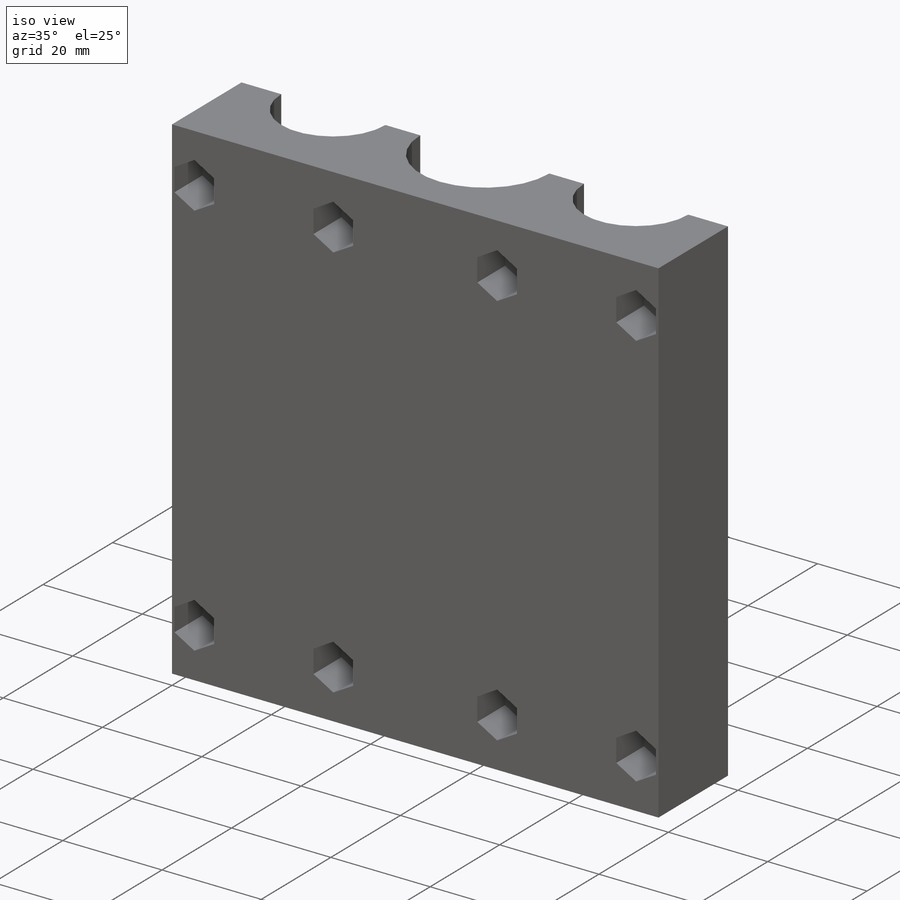
[diagram: iso view]
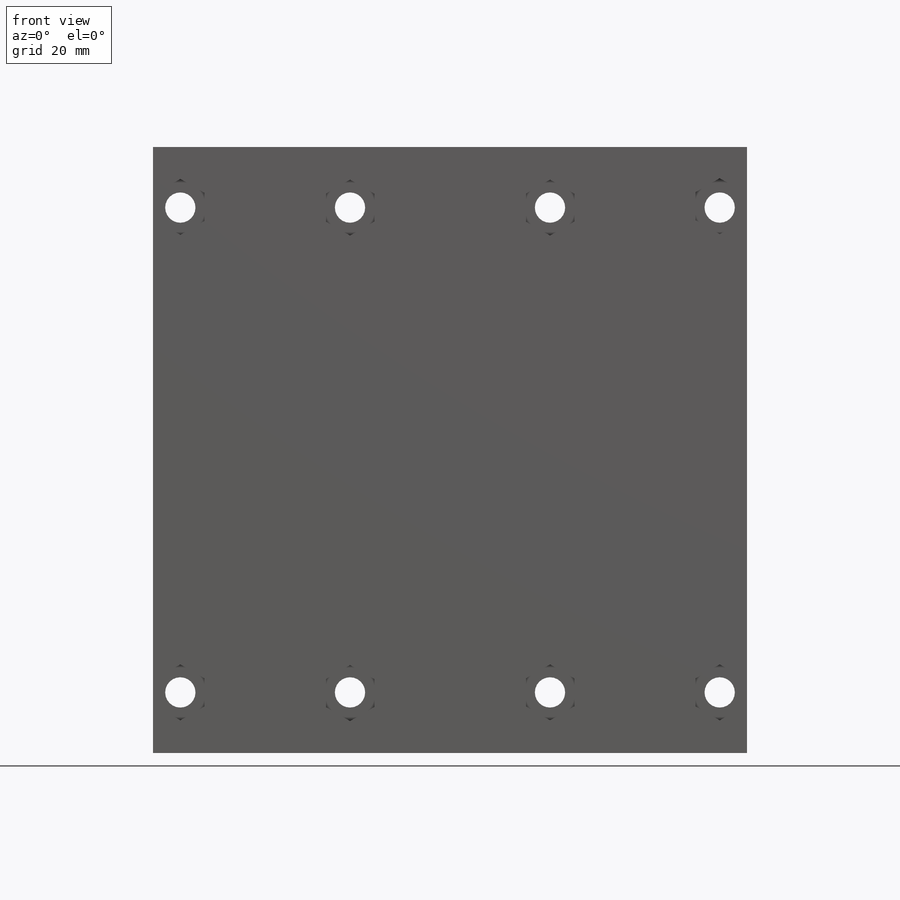
[diagram: front view]
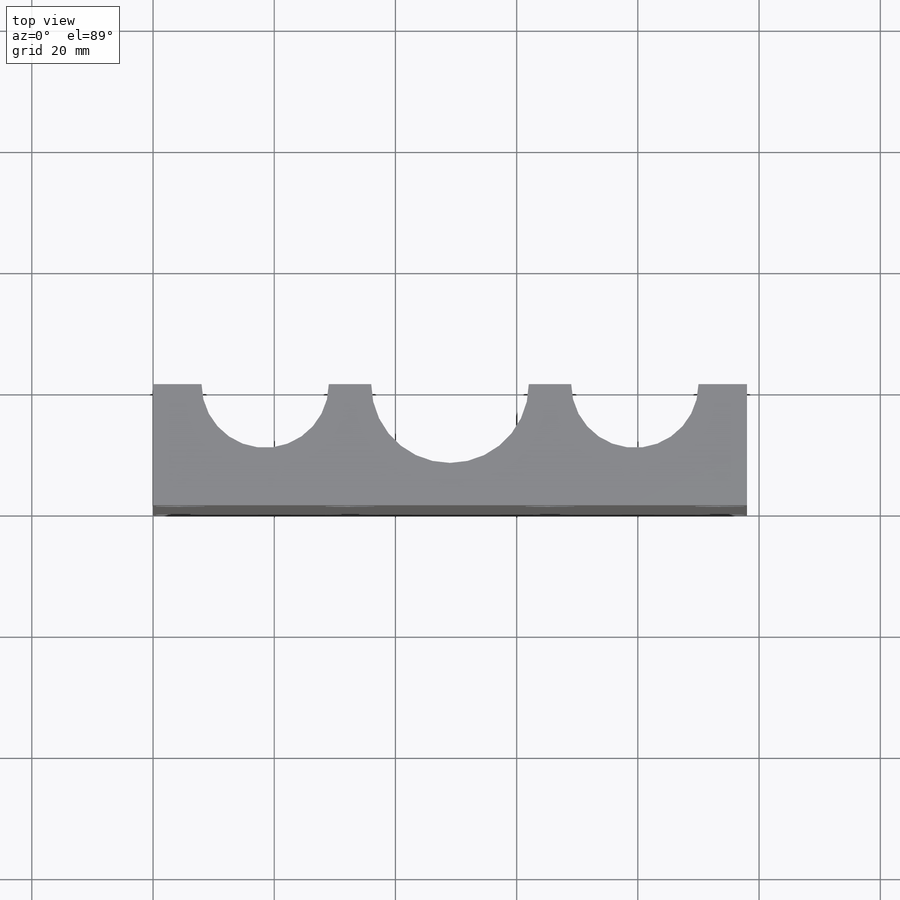
[diagram: top view]
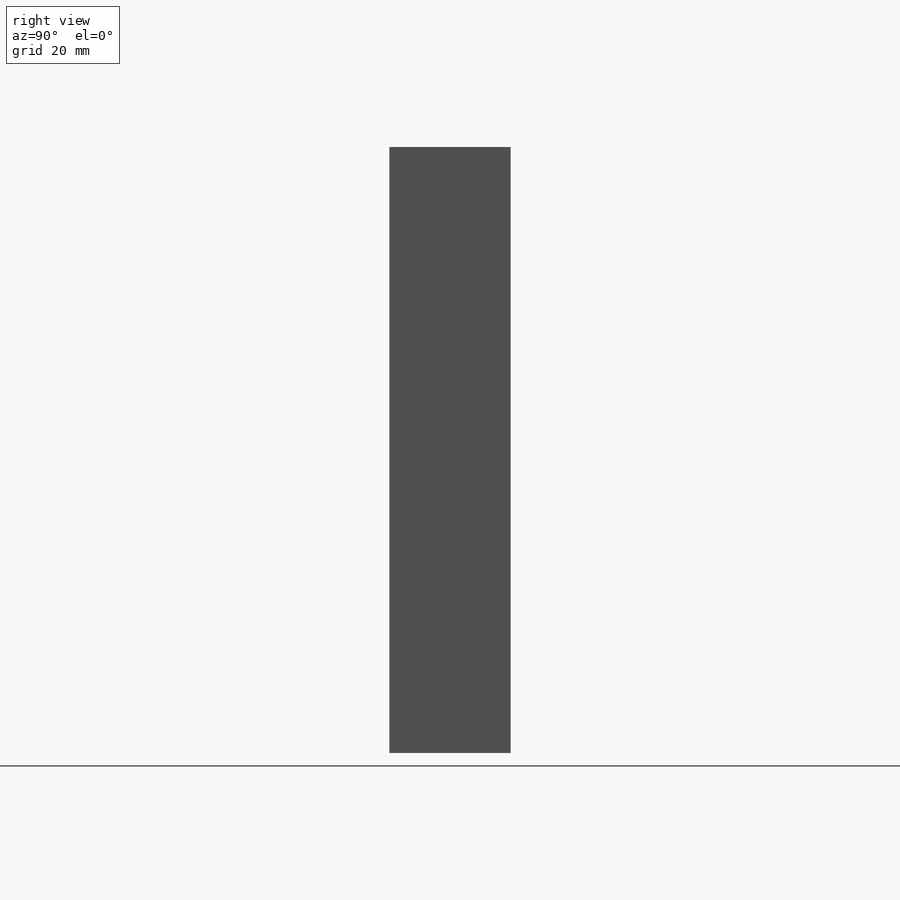
[diagram: right view]
SOLIDWORKS PART (.sldprt)
format: sldprt  version: not decoded by parser v0  size: 560,128 bytes
history: native  units: mm
features: extrude x8, sketch x4, plane x3, cut_extrude x3, material x1 (+8 scaffold rows collapsed)
feature tree (27):
  scaffold x8  (default folders/planes/origin — collapsed)
  material  "Material <not specified>"
  plane  "Ebene vorne"
  plane  "Ebene oben"
  plane  "Ebene rechts"
  sketch  "Skizze1"  dims[D1=98.0mm D2=100.0mm]
  extrude  "Aufsatz-Linear austragen1"  Depth=20mm
  sketch  "Skizze2"  dims[D1=26.0mm D2=21.0mm D3=21.0mm D4=18.5mm D5=18.5mm]
  cut_extrude  "Schnitt-Linear austragen1"  [1 undecoded]
  sketch  "Skizze3"  dims[D1=5.0mm D3=5.0mm D7=5.0mm D8=5.0mm D9=5.0mm D10=5.0mm D11=5.0mm D12=5.0mm D2=10.0mm D4=10.0mm D5=3.5mm D6=3.5mm D13=3.5mm D14=3.5mm D15=3.5mm D16=3.5mm D17=3.5mm D18=3.5mm]
  cut_extrude  "Schnitt-Linear austragen2"  [1 undecoded]
  sketch  "Skizze4"
  extrude  "Block2"  [1 undecoded]
  extrude  "Block3"  [1 undecoded]
  extrude  "Block4"  [1 undecoded]
  extrude  "Block5"  [1 undecoded]
  extrude  "Block6"  [1 undecoded]
  extrude  "Block7"  [1 undecoded]
  extrude  "Block8"  [1 undecoded]
  cut_extrude  "Schnitt-Linear austragen3"  Depth=8mm
decode coverage: 5 of 15 modeling features carry decoded parameters
note: 9 parameter values undecoded
summary: no parameter record found for 9 features
note: suppression state not decoded; provenance and decode notes live in map.json
